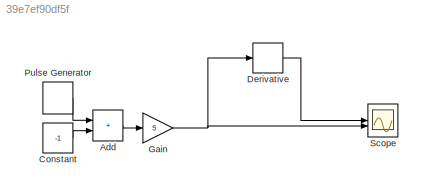
MODEL slx_39e7ef90df5f
KIND model
CONFIG AbsTol = auto
CONFIG EnableMultiTasking = off
CONFIG FixedStep = auto
CONFIG MaxStep = auto
CONFIG MinStep = auto
CONFIG RelTol = 1e-3
CONFIG SampleTimeConstraint = Unconstrained
CONFIG SolverName = VariableStepAuto
CONFIG StartTime = 0.0
CONFIG StopTime = 10.0
BLOCK [Sum] Add
  IconShape = rectangular
BLOCK [Constant] Constant
  Value = -1
BLOCK [Derivative] Derivative
BLOCK [Gain] Gain
  Gain = 5
BLOCK [DiscretePulseGenerator] Pulse Generator
  Amplitude = 2
  Period = 1/0.5
  PulseType = Time based
  PulseWidth = 50
BLOCK [Scope] Scope
  Floating = off
  NumInputPorts = 2
  ScopeSpecificationString = Simulink.scopes.TimeScopeBlockCfg('CurrentConfiguration', extmgr.ConfigurationSet(extmgr.Configuration('Core','General UI',true),extmgr.Configuration('Core','Source UI',true),extmgr.Configuration('Sources','WiredSimulink',true),extmgr.Configuration('Visuals','Time Domain',true,'SerializedDisplays',{struct('MinYLimReal','-62.5','MaxYLimReal','62.5','YLabelReal','','MinYLimMag','0.00000','MaxYLimMag...<+1401ch>
LINE Add:1 -> Gain:1
LINE Constant:1 -> Add:2
LINE Derivative:1 -> Scope:1
NET Gain:1 -> Derivative:1, Scope:2
LINE Pulse Generator:1 -> Add:1
note: NET lines group one-source signal fan-out (src -> all destinations, sorted); 1:1 wires keep LINE
